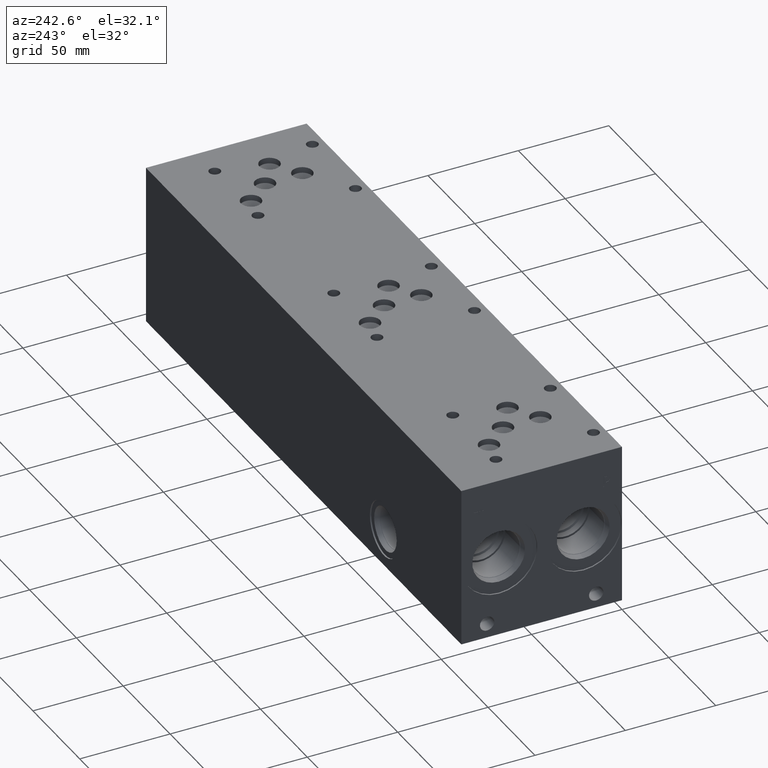
[diagram: clean part render]
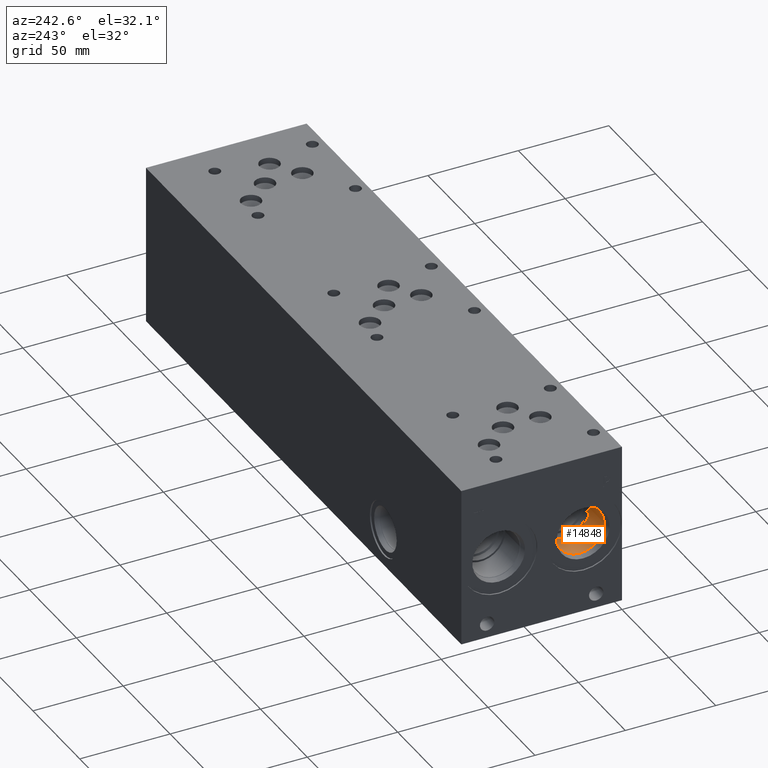
[diagram: same view with one face highlighted and labeled with its STEP entity id]
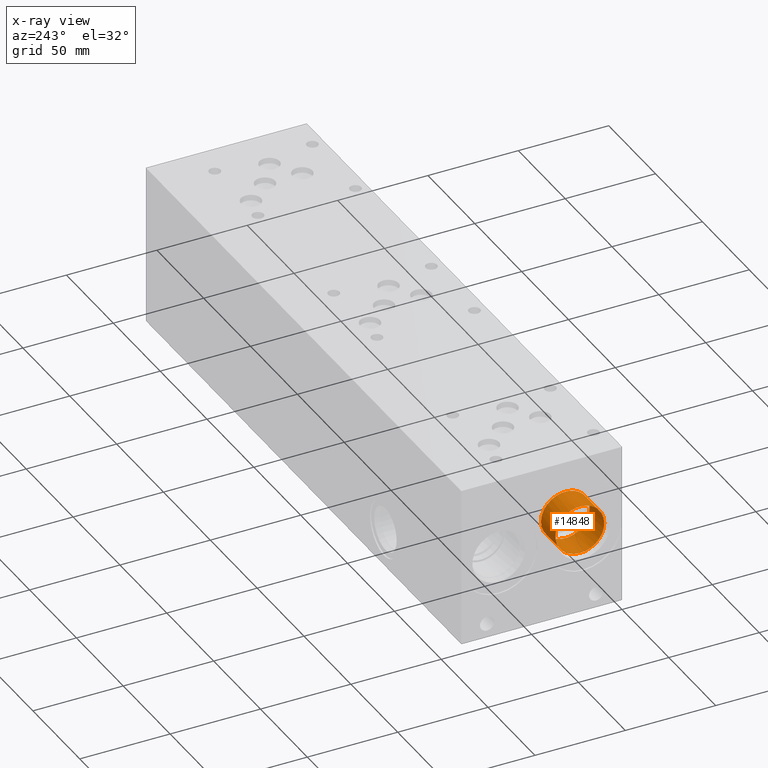
[diagram: x-ray of the same camera — body ghosted, the highlighted face saturated]
A machine part, auxiliary view. The second image highlights one B-rep face of the part: STEP entity #14848.
The next image is the same camera in x-ray: the body ghosted, the highlighted face saturated — about 0% of this face is hidden behind the body in this view.
In plain terms, the highlighted cylindrical surface (bore or boss wall) has radius 13.495 mm, axis along (-1, 0, 0).
Its self-contained STEP definition (entity closure, byte-faithful):
#115=CYLINDRICAL_SURFACE('',#15566,13.495);
#316=CIRCLE('',#15563,13.495);
#317=CIRCLE('',#15564,13.495);
#319=CIRCLE('',#15567,13.495);
#320=CIRCLE('',#15568,13.495);
#1921=FACE_OUTER_BOUND('',#2775,.T.);
#2775=EDGE_LOOP('',(#12426,#12427,#12428,#12429,#12430,#12431));
#4161=LINE('',#25255,#5458);
#5458=VECTOR('',#18239,13.495);
#6731=VERTEX_POINT('',#25245);
#6732=VERTEX_POINT('',#25246);
#6734=VERTEX_POINT('',#25252);
#6735=VERTEX_POINT('',#25253);
#8714=EDGE_CURVE('',#6731,#6732,#316,.T.);
#8715=EDGE_CURVE('',#6732,#6731,#317,.T.);
#8717=EDGE_CURVE('',#6734,#6735,#319,.T.);
#8718=EDGE_CURVE('',#6734,#6732,#4161,.T.);
#8719=EDGE_CURVE('',#6735,#6734,#320,.T.);
#12426=ORIENTED_EDGE('',*,*,#8717,.F.);
#12427=ORIENTED_EDGE('',*,*,#8718,.T.);
#12428=ORIENTED_EDGE('',*,*,#8714,.F.);
#12429=ORIENTED_EDGE('',*,*,#8715,.F.);
#12430=ORIENTED_EDGE('',*,*,#8718,.F.);
#12431=ORIENTED_EDGE('',*,*,#8719,.F.);
#14848=ADVANCED_FACE('',(#1921),#115,.F.);
#15563=AXIS2_PLACEMENT_3D('',#25247,#18229,#18230);
#15564=AXIS2_PLACEMENT_3D('',#25248,#18231,#18232);
#15566=AXIS2_PLACEMENT_3D('',#25251,#18235,#18236);
#15567=AXIS2_PLACEMENT_3D('',#25254,#18237,#18238);
#15568=AXIS2_PLACEMENT_3D('',#25256,#18240,#18241);
#18229=DIRECTION('center_axis',(-1.,0.,0.));
#18230=DIRECTION('ref_axis',(0.,1.,0.));
#18231=DIRECTION('center_axis',(-1.,0.,0.));
#18232=DIRECTION('ref_axis',(0.,1.,0.));
#18235=DIRECTION('center_axis',(-1.,0.,0.));
#18236=DIRECTION('ref_axis',(0.,1.,0.));
#18237=DIRECTION('center_axis',(1.,0.,0.));
#18238=DIRECTION('ref_axis',(0.,1.,0.));
#18239=DIRECTION('',(1.,0.,0.));
#18240=DIRECTION('center_axis',(1.,0.,0.));
#18241=DIRECTION('ref_axis',(0.,1.,0.));
#25245=CARTESIAN_POINT('',(19.8374,34.577,44.45));
#25246=CARTESIAN_POINT('',(19.8374,7.587,44.45));
#25247=CARTESIAN_POINT('Origin',(19.8374,21.082,44.45));
#25248=CARTESIAN_POINT('Origin',(19.8374,21.082,44.45));
#25251=CARTESIAN_POINT('Origin',(9.9187,21.082,44.45));
#25252=CARTESIAN_POINT('',(4.285,7.587,44.45));
#25253=CARTESIAN_POINT('',(4.285,21.082,30.955));
#25254=CARTESIAN_POINT('Origin',(4.285,21.082,44.45));
#25255=CARTESIAN_POINT('',(9.9187,7.587,44.45));
#25256=CARTESIAN_POINT('Origin',(4.285,21.082,44.45));